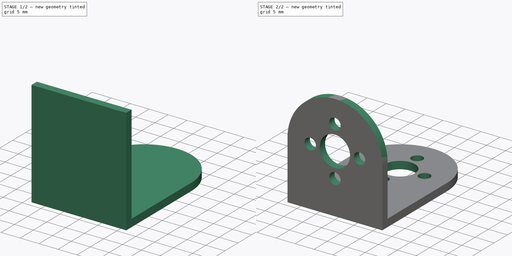
[diagram: build sequence overview — one tinted view per stage of 2, left to right]
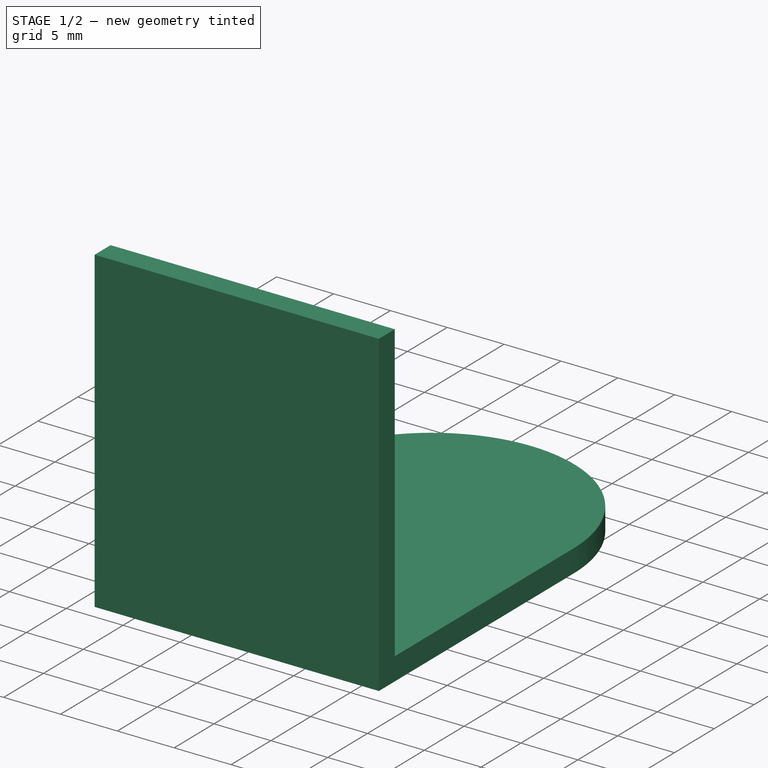
[diagram: stage 1 of 2 — iso view after this stage's code; geometry added in this stage tinted green]
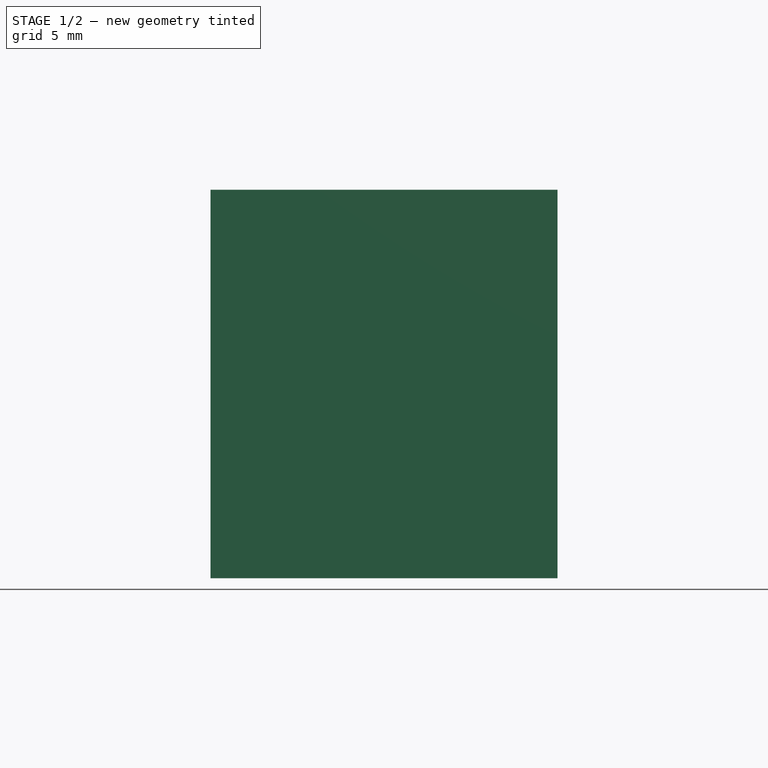
[diagram: stage 1 of 2 — front view after this stage's code; geometry added in this stage tinted green]
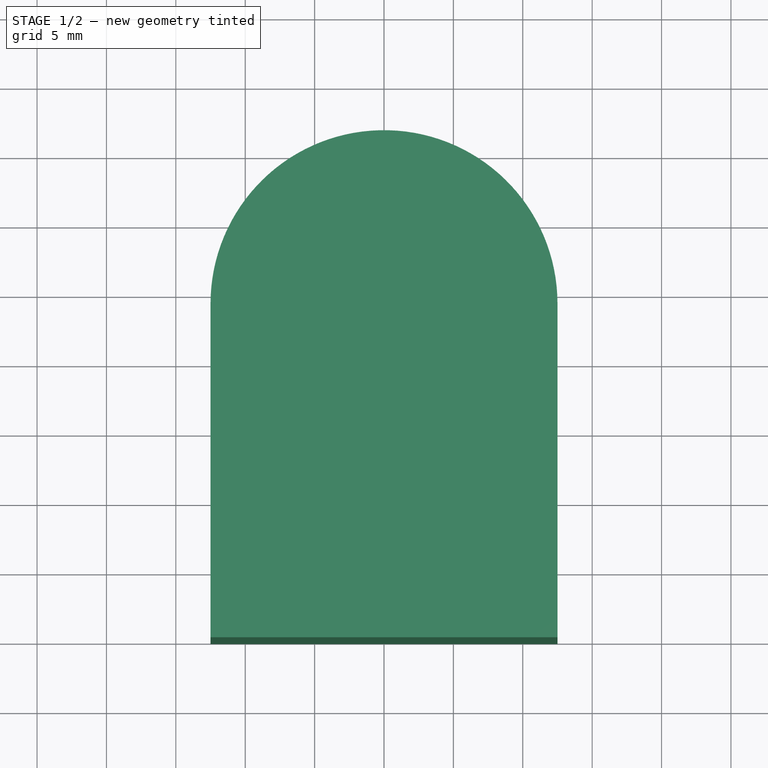
[diagram: stage 1 of 2 — top view after this stage's code; geometry added in this stage tinted green]
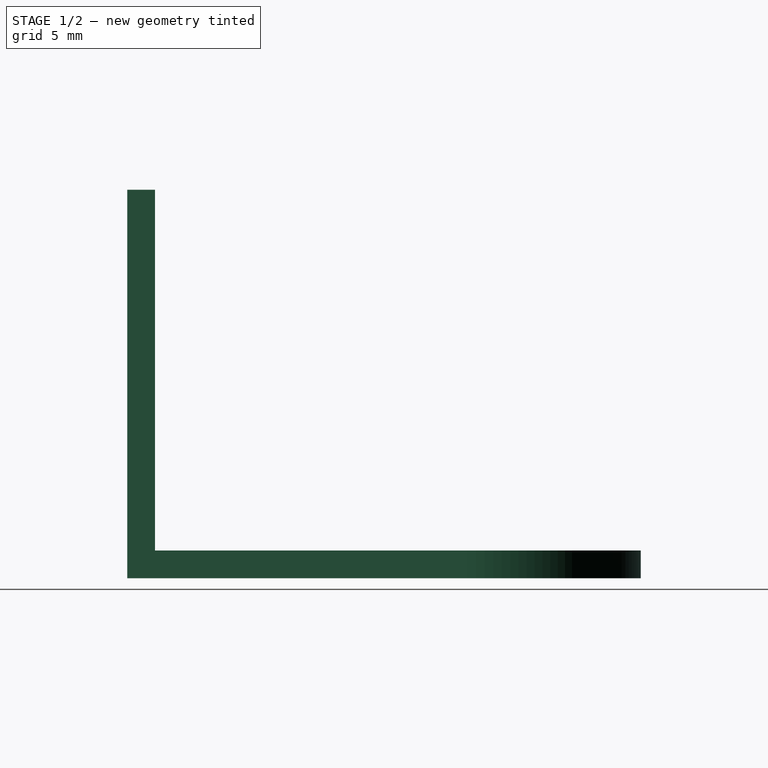
[diagram: stage 1 of 2 — right view after this stage's code; geometry added in this stage tinted green]
FCSTD DOCUMENT  (FreeCAD 0.19R24276 (Git))
Label: pieza_ultima
License: All rights reserved
LicenseURL: http://en.wikipedia.org/wiki/All_rights_reserved
objects: Sketcher::SketchObject×4, PartDesign::Pad×2, PartDesign::Pocket×2, PartDesign::Body×1
note: 13 computed .brp shape members not serialized (recipe doc carries the construction recipe); baked Part::Feature solids carry a one-line shape summary decoded from their .brp

FEATURE [Sketcher::SketchObject] Sketch
  FullyConstrained = true
  MapMode = 5
  Support = -> [XY_Plane]
  sketch-geometry (5):
    g0: LineSegment StartX=-12.5 StartY=0 StartZ=0 EndX=12.5 EndY=0 EndZ=0
    g1: LineSegment StartX=12.5 StartY=0 StartZ=0 EndX=12.5 EndY=24.5 EndZ=0
    g2: ArcOfCircle CenterX=0 CenterY=24.5 CenterZ=0 NormalX=0 NormalY=0 NormalZ=1 AngleXU=0 Radius=12.5 StartAngle=-9e-16 EndAngle=3.14159
    g3: LineSegment StartX=-12.5 StartY=24.5 StartZ=0 EndX=-12.5 EndY=0 EndZ=0
    g4: GeomPoint X=0 Y=37 Z=0
  constraints (13):
    c: PointOnObject(g0,g-1)
    c: PointOnObject(g0,g-1)
    c: Coincident(g0,g1)
    c: Vertical(g1)
    c: Tangent(g1,g2) = -1.5708
    c: Tangent(g2,g3) = -1.5708
    c: Coincident(g3,g0)
    c: PointOnObject(g2,g-2)
    c: PointOnObject(g4,g2)
    c: PointOnObject(g4,g-2)
    c: DistanceY(g-1,g4) = 37
    c: Vertical(g3)
    c: DistanceX(g0,g0) = 25
FEATURE [PartDesign::Pad] Pad
  Direction = (1,1,1)
  Length = 2
  Length2 = 100
  Profile = -> Sketch
  Type = 0
FEATURE [Sketcher::SketchObject] Sketch001
  ExternalGeometry = -> [Pad]
  FullyConstrained = true
  MapMode = 5
  Placement = pos=(0,0,2) rot=(0,0,1;0rad)
  Support = -> [Pad]
  sketch-geometry (4):
    g0: LineSegment StartX=12.5 StartY=0 StartZ=0 EndX=-12.5 EndY=0 EndZ=0
    g1: LineSegment StartX=-12.5 StartY=0 StartZ=0 EndX=-12.5 EndY=2 EndZ=0
    g2: LineSegment StartX=-12.5 StartY=2 StartZ=0 EndX=12.5 EndY=2 EndZ=0
    g3: LineSegment StartX=12.5 StartY=2 StartZ=0 EndX=12.5 EndY=0 EndZ=0
  constraints (11):
    c: Coincident(g0,g1)
    c: Coincident(g1,g2)
    c: Coincident(g2,g3)
    c: Coincident(g3,g0)
    c: Horizontal(g0)
    c: Horizontal(g2)
    c: Vertical(g1)
    c: Vertical(g3)
    c: Coincident(g0,g-3)
    c: Vertical(g1,g-4)
    c: DistanceY(g3,g3) = 2
FEATURE [PartDesign::Pad] Pad001
  BaseFeature = -> Pad
  Direction = (1,1,1)
  Length = 26
  Length2 = 100
  Profile = -> Sketch001
  Type = 0
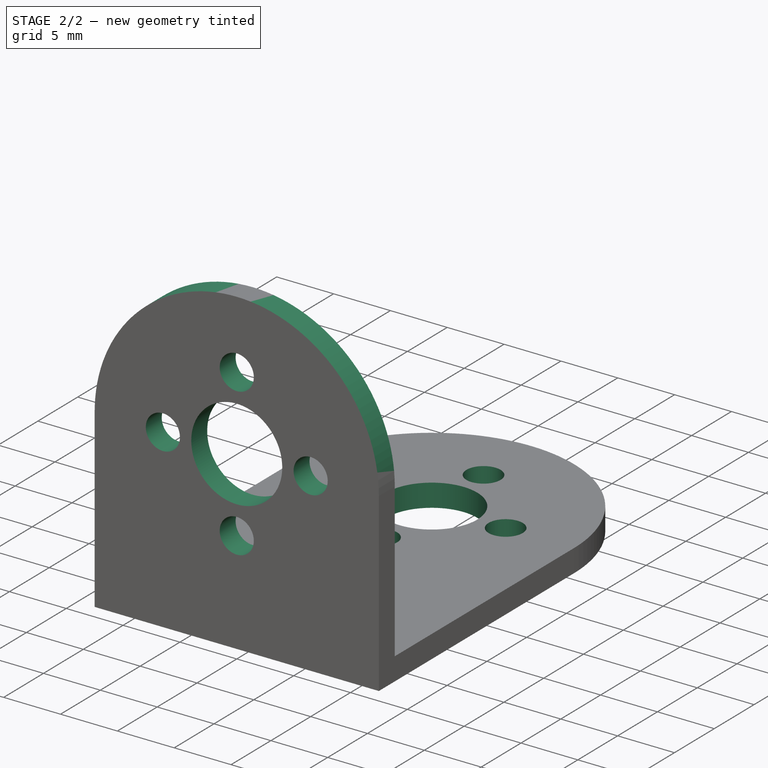
[diagram: stage 2 of 2 — iso view after this stage's code; geometry added in this stage tinted green]
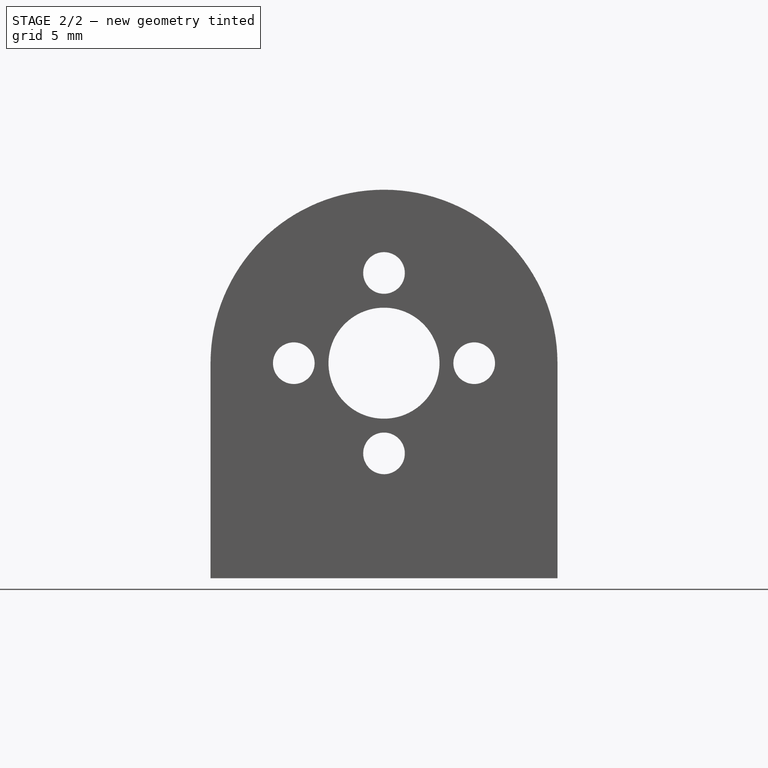
[diagram: stage 2 of 2 — front view after this stage's code; geometry added in this stage tinted green]
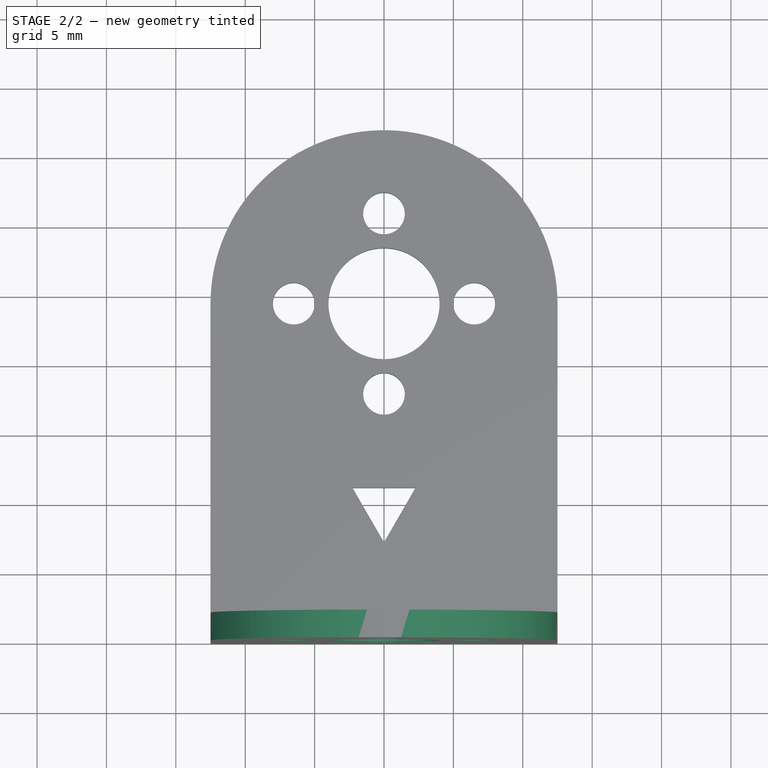
[diagram: stage 2 of 2 — top view after this stage's code; geometry added in this stage tinted green]
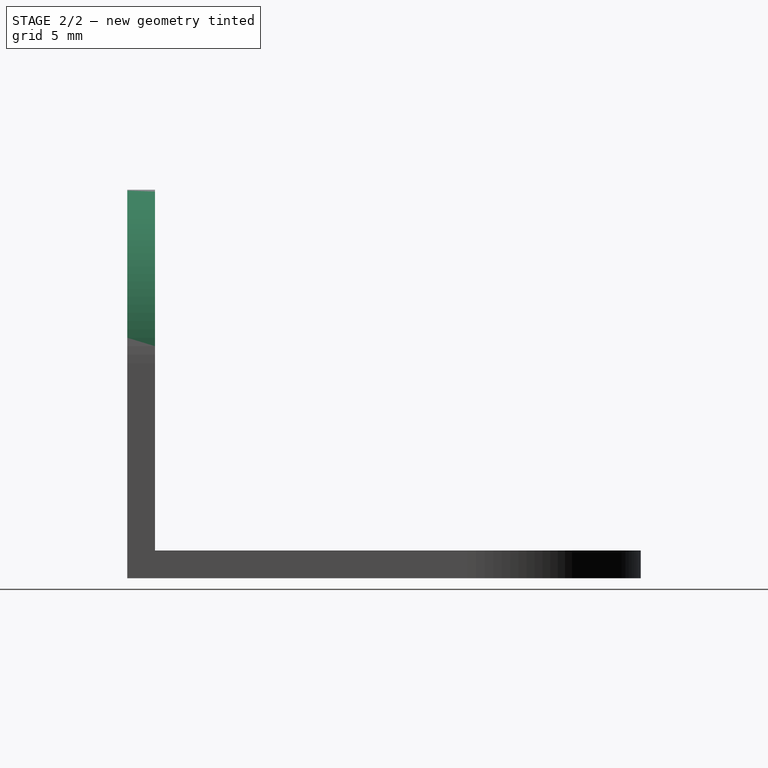
[diagram: stage 2 of 2 — right view after this stage's code; geometry added in this stage tinted green]
FEATURE [Sketcher::SketchObject] Sketch002
  ExternalGeometry = -> [Pad001]
  FullyConstrained = false
  MapMode = 5
  Placement = pos=(0,0,2) rot=(0,0,1;0rad)
  Support = -> [Pad001]
  sketch-geometry (9):
    g0: Circle CenterX=0 CenterY=31 CenterZ=0 NormalX=0 NormalY=0 NormalZ=1 AngleXU=0 Radius=1.5
    g1: Circle CenterX=0 CenterY=24.5 CenterZ=0 NormalX=0 NormalY=0 NormalZ=1 AngleXU=0 Radius=4
    g2: Circle CenterX=0 CenterY=18 CenterZ=0 NormalX=0 NormalY=0 NormalZ=1 AngleXU=0 Radius=1.5
    g3: Circle CenterX=6.5 CenterY=24.5 CenterZ=0 NormalX=0 NormalY=0 NormalZ=1 AngleXU=0 Radius=1.5
    g4: Circle CenterX=-6.5 CenterY=24.5 CenterZ=0 NormalX=0 NormalY=0 NormalZ=1 AngleXU=0 Radius=1.5
    g5: LineSegment StartX=2.26672 StartY=11.2263 StartZ=0 EndX=-2.26672 EndY=11.2263 EndZ=0
    g6: LineSegment StartX=-2.26672 StartY=11.2263 StartZ=0 EndX=0 EndY=7.30027 EndZ=0
    g7: LineSegment StartX=0 StartY=7.30027 StartZ=0 EndX=2.26672 EndY=11.2263 EndZ=0
    g8: Circle CenterX=0 CenterY=9.91765 CenterZ=0 NormalX=0 NormalY=0 NormalZ=1 AngleXU=0 Radius=2.61738
  constraints (23):
    c: PointOnObject(g0,g-2)
    c: PointOnObject(g1,g-2)
    c: Horizontal(g4,g1)
    c: Symmetric(g3,g4,g-2)
    c: Symmetric(g0,g2,g1)
    c: Diameter(g1) = 8
    c: Diameter(g0) = 3
    c: Equal(g0,g3)
    c: Equal(g0,g4)
    c: Equal(g0,g2)
    c: DistanceY(g1,g0) = 6.5
    c: DistanceX(g1,g3) = 6.5
    c: Horizontal(g-3,g3)
    c: Coincident(g5,g6)
    c: Coincident(g6,g7)
    c: Coincident(g7,g5)
    c: Equal(g5,g6)
    c: Equal(g5,g7)
    c: PointOnObject(g5,g8)
    c: PointOnObject(g6,g8)
    c: PointOnObject(g7,g8)
    c: PointOnObject(g8,g-2)
    c: PointOnObject(g6,g-2)
FEATURE [PartDesign::Pocket] Pocket
  BaseFeature = -> Pad001
  Length = 5
  Length2 = 100
  Profile = -> Sketch002
  Type = 0
FEATURE [Sketcher::SketchObject] Sketch003
  ExternalGeometry = -> [Pocket]
  FullyConstrained = false
  MapMode = 5
  Placement = pos=(0,2,0) rot=(0,0.707107,0.707107;3.14159rad)
  Support = -> [Pocket]
  sketch-geometry (10):
    g0: ArcOfCircle CenterX=0 CenterY=15.5 CenterZ=0 NormalX=0 NormalY=0 NormalZ=1 AngleXU=0 Radius=12.5 StartAngle=6.28318 EndAngle=9.42478
    g1: LineSegment StartX=12.5 StartY=15.5 StartZ=0 EndX=19.595 EndY=31.667 EndZ=0
    g2: LineSegment StartX=19.595 StartY=31.667 StartZ=0 EndX=-17.8744 EndY=34.4594 EndZ=0
    g3: LineSegment StartX=-17.8744 StartY=34.4594 StartZ=0 EndX=-15.082 EndY=13.7953 EndZ=0
    g4: LineSegment StartX=-15.082 StartY=13.7953 StartZ=0 EndX=-12.5 EndY=15.5 EndZ=0
    g5: Circle CenterX=0 CenterY=22 CenterZ=0 NormalX=0 NormalY=0 NormalZ=1 AngleXU=0 Radius=1.5
    g6: Circle CenterX=0 CenterY=15.5 CenterZ=0 NormalX=0 NormalY=0 NormalZ=1 AngleXU=0 Radius=4
    g7: Circle CenterX=1.606e-13 CenterY=9 CenterZ=0 NormalX=0 NormalY=0 NormalZ=1 AngleXU=0 Radius=1.5
    g8: Circle CenterX=6.5 CenterY=15.5 CenterZ=0 NormalX=0 NormalY=0 NormalZ=1 AngleXU=0 Radius=1.5
    g9: Circle CenterX=-6.5 CenterY=15.5 CenterZ=0 NormalX=0 NormalY=0 NormalZ=1 AngleXU=0 Radius=1.5
  constraints (22):
    c: PointOnObject(g0,g-2)
    c: Tangent(g0,g-5)
    c: Tangent(g0,g-4)
    c: Coincident(g1,g2)
    c: Coincident(g2,g3)
    c: Coincident(g3,g4)
    c: PointOnObject(g1,g-3)
    c: PointOnObject(g4,g-5)
    c: Coincident(g0,g1)
    c: Coincident(g0,g4)
    c: PointOnObject(g5,g-2)
    c: Coincident(g6,g0)
    c: Horizontal(g0,g9)
    c: Symmetric(g8,g9,g-2)
    c: Symmetric(g5,g7,g0)
    c: Diameter(g6) = 8
    c: Diameter(g5) = 3
    c: Equal(g5,g9)
    c: Equal(g5,g7)
    c: Equal(g5,g8)
    c: DistanceY(g0,g5) = 6.5
    c: DistanceX(g9,g0) = 6.5
FEATURE [PartDesign::Pocket] Pocket001
  BaseFeature = -> Pocket
  Length = 5
  Length2 = 100
  Profile = -> Sketch003
  Type = 0
FEATURE [PartDesign::Body] Body
  Group = -> [Sketch,Pad,Sketch001,Pad001,Sketch002,Pocket,Sketch003,Pocket001]
  Origin = -> Origin
  Tip = -> Pocket001
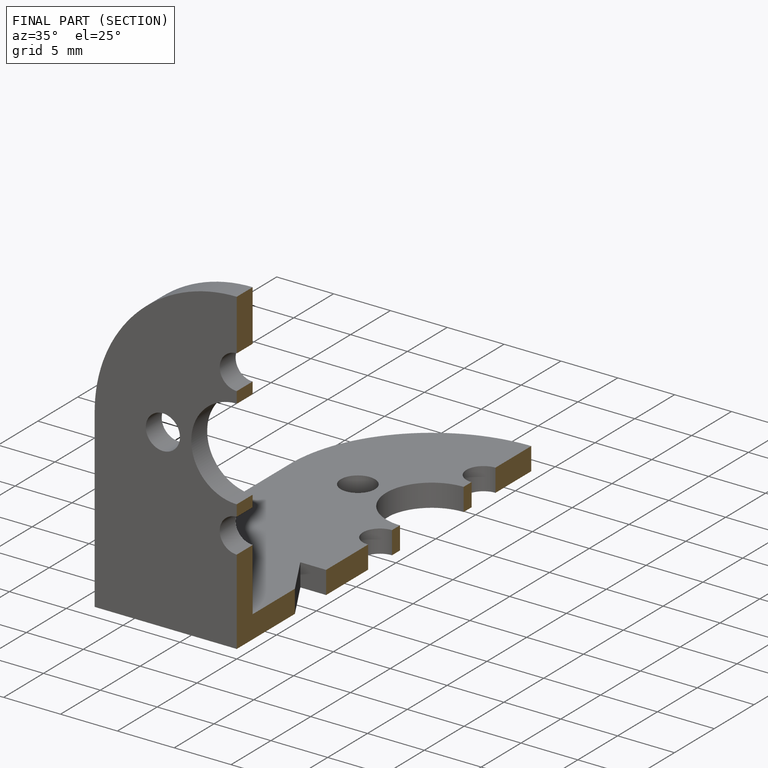
[diagram: finished part — half-section view (interior)]
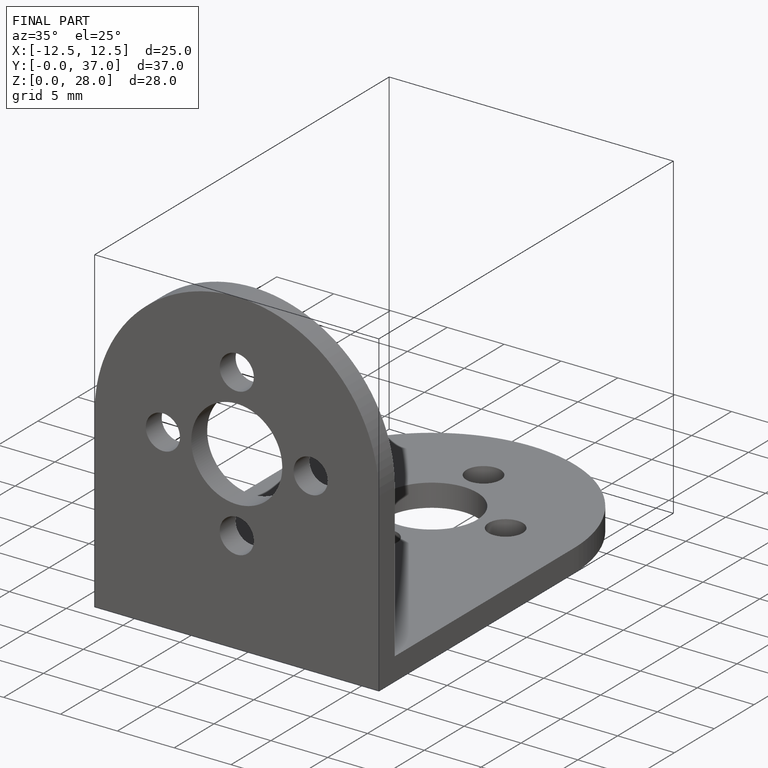
[diagram: finished part — iso view with bounding-box wireframe]
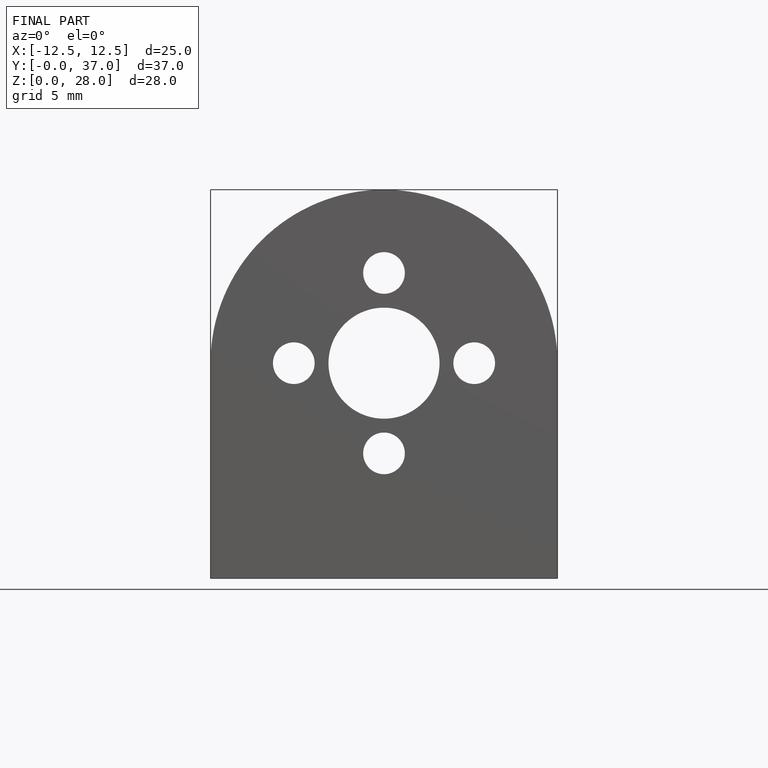
[diagram: finished part — front view with bounding-box wireframe]
